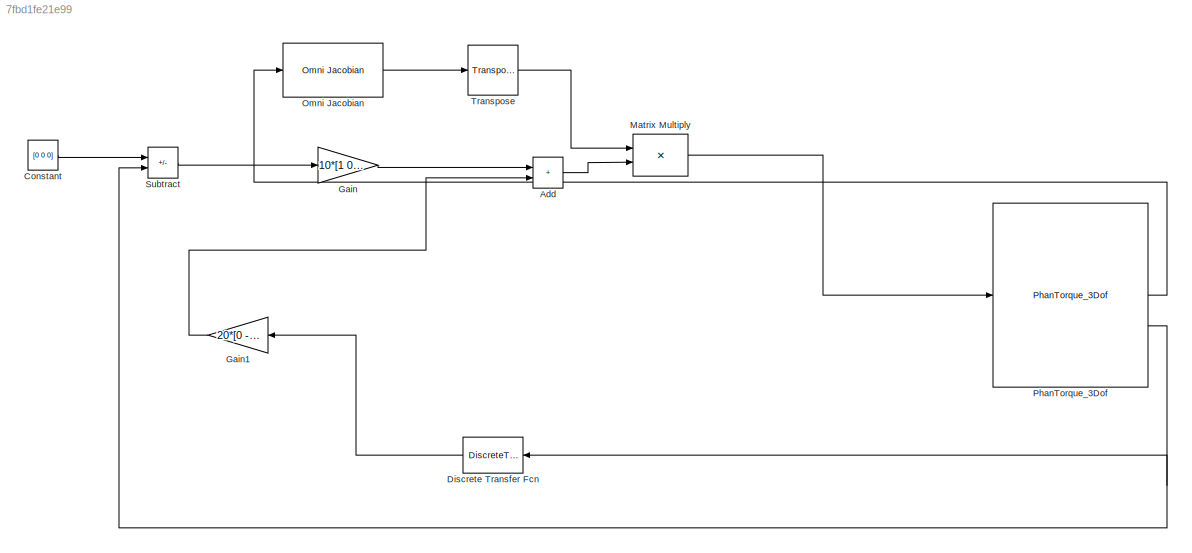
MODEL slx_7fbd1fe21e99
KIND model
CONFIG AbsTol = auto
CONFIG EnableMultiTasking = off
CONFIG FixedStep = 0.001
CONFIG MaxStep = auto
CONFIG MinStep = auto
CONFIG RelTol = 1e-3
CONFIG SampleTimeConstraint = Unconstrained
CONFIG SolverName = FixedStepDiscrete
CONFIG StartTime = 0.0
CONFIG StopTime = inf
BLOCK [Sum] Add
  IconShape = rectangular
BLOCK [Constant] Constant
  Value = [0 0 0]
BLOCK [DiscreteTransferFcn] Discrete Transfer Fcn
  Denominator = [1 -(1-0.001/0.2)]
  InputPortMap = u0
  Numerator = [0.001/0.2]
BLOCK [Gain] Gain
  Gain = 10*[1 0 0; 0 1 0; 0 0 1]
  Multiplication = Matrix(K*u)
BLOCK [Gain] Gain1
  Gain = 20*[0 -1 0; 1 0 0; 0 0 0]
  Multiplication = Matrix(K*u)
BLOCK [Product] Matrix Multiply
  Multiplication = Matrix(*)
BLOCK [Reference] Omni Jacobian  REF=PhanTorque_3Dof_Library_64Bits/Omni Jacobian
  SourceBlock = PhanTorque_3Dof_Library_64Bits/Omni Jacobian
BLOCK [Reference] PhanTorque_3Dof  REF=PhanTorque_3Dof_Library_64Bits/PhanTorque_3Dof
  SourceBlock = PhanTorque_3Dof_Library_64Bits/PhanTorque_3Dof
BLOCK [Sum] Subtract
  IconShape = rectangular
  Inputs = +-
BLOCK [Reference] Transpose  REF=matrix_library/Transpose
  LibrarySourceBlock = simulink/Matrix\nOperations/Transpose
  SourceBlock = matrix_library/Transpose
  SourceType = Transpose
LINE Add:1 -> Matrix Multiply:2
LINE Constant:1 -> Subtract:1
LINE Discrete Transfer Fcn:1 -> Gain1:1
LINE Gain1:1 -> Add:2
LINE Gain:1 -> Add:1
LINE Matrix Multiply:1 -> PhanTorque_3Dof:1
LINE Omni Jacobian:1 -> Transpose:1
LINE PhanTorque_3Dof:1 -> Omni Jacobian:1
NET PhanTorque_3Dof:2 -> Discrete Transfer Fcn:1, Subtract:2
LINE Subtract:1 -> Gain:1
LINE Transpose:1 -> Matrix Multiply:1
note: NET lines group one-source signal fan-out (src -> all destinations, sorted); 1:1 wires keep LINE
